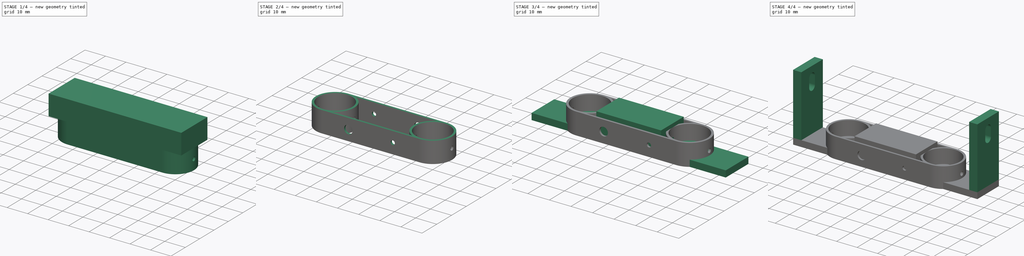
[diagram: build sequence overview — one tinted view per stage of 4, left to right]
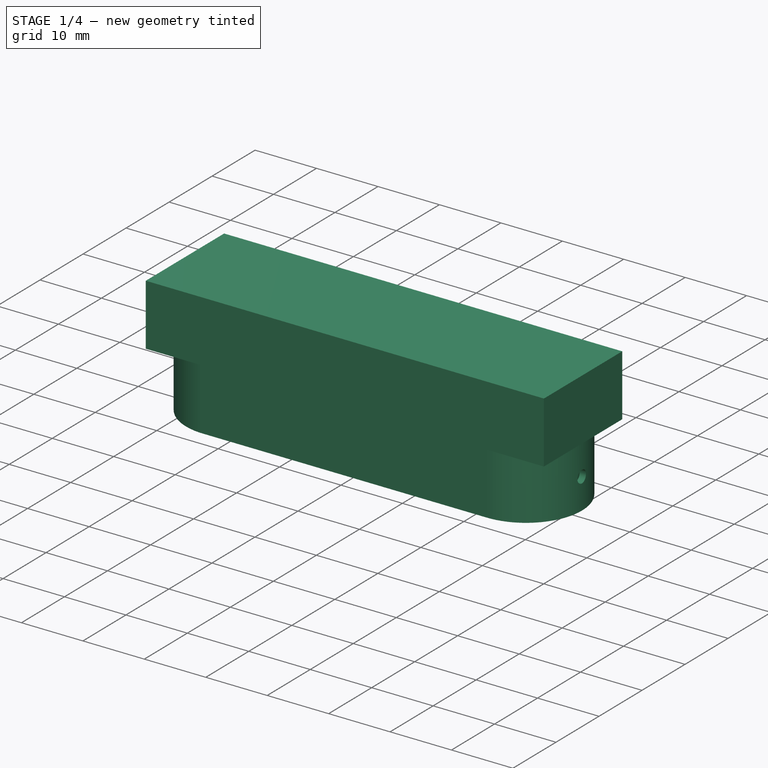
[diagram: stage 1 of 4 — iso view after this stage's code; geometry added in this stage tinted green]
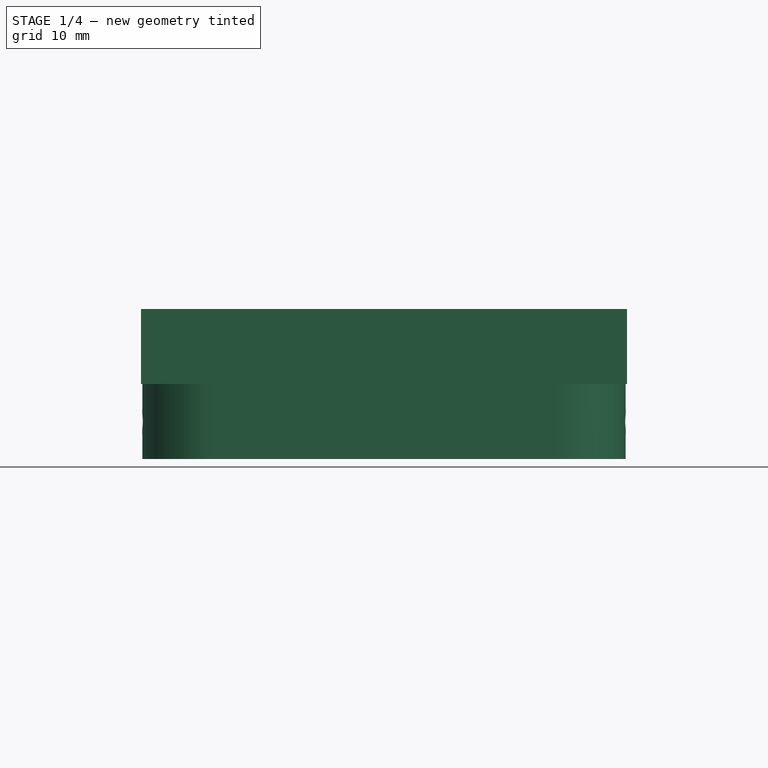
[diagram: stage 1 of 4 — front view after this stage's code; geometry added in this stage tinted green]
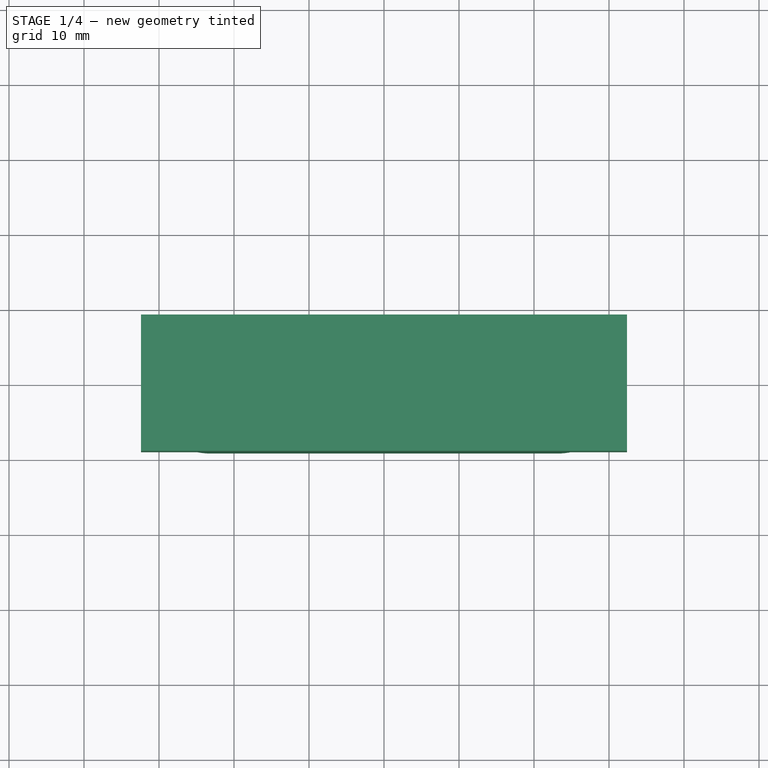
[diagram: stage 1 of 4 — top view after this stage's code; geometry added in this stage tinted green]
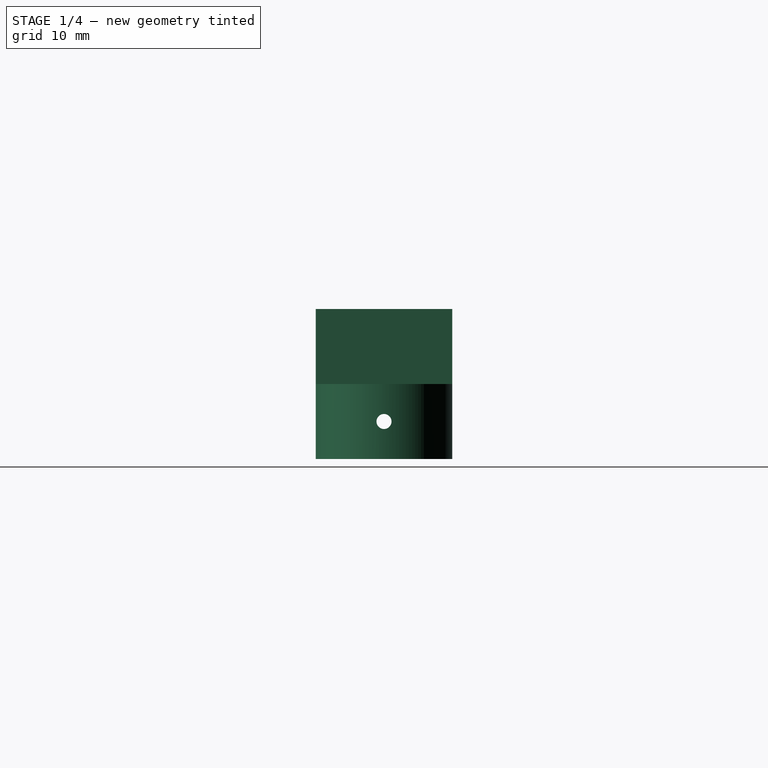
[diagram: stage 1 of 4 — right view after this stage's code; geometry added in this stage tinted green]
FCSTD DOCUMENT  (FreeCAD 0.21R33771 (Git))
Label: MotorBracket
License: All rights reserved
LicenseURL: http://en.wikipedia.org/wiki/All_rights_reserved
objects: Sketcher::SketchObject×11, PartDesign::Pocket×6, PartDesign::Pad×5, PartDesign::Body×2, App::Part×2
note: 35 computed .brp shape members not serialized (recipe doc carries the construction recipe); baked Part::Feature solids carry a one-line shape summary decoded from their .brp

FEATURE [PartDesign::Body] Body  label="MotorBracketBody"
  Group = -> [Sketch,Pad,Sketch001,Pad001,Sketch002,Pocket,Sketch003,Pad002,Sketch004,Pocket001]
  Origin = -> Origin001
  Tip = -> Pocket001
FEATURE [App::Part] Part  label="MotorBracketPart"
  Group = -> [Body]
  Origin = -> Origin
FEATURE [Sketcher::SketchObject] Sketch005
  FullyConstrained = true
  MapMode = 5
  Support = -> [XY_Plane003]
  sketch-geometry (11):
    g0: Circle CenterX=-23.125 CenterY=0 CenterZ=0 NormalX=0 NormalY=0 NormalZ=1 AngleXU=0 Radius=8.1
    g1: Circle CenterX=23.125 CenterY=0 CenterZ=0 NormalX=0 NormalY=0 NormalZ=1 AngleXU=0 Radius=8.1
    g2: ArcOfCircle CenterX=-23.125 CenterY=0 CenterZ=0 NormalX=0 NormalY=0 NormalZ=1 AngleXU=0 Radius=9.1 StartAngle=1.5708 EndAngle=4.71239
    g3: ArcOfCircle CenterX=23.125 CenterY=0 CenterZ=0 NormalX=0 NormalY=0 NormalZ=1 AngleXU=0 Radius=9.1 StartAngle=4.71239 EndAngle=7.85398
    g4: LineSegment StartX=-23.125 StartY=9.1 StartZ=0 EndX=23.125 EndY=9.1 EndZ=0
    g5: LineSegment StartX=23.125 StartY=-9.1 StartZ=0 EndX=-23.125 EndY=-9.1 EndZ=0
    g6: ArcOfCircle CenterX=-23.125 CenterY=0 CenterZ=0 NormalX=0 NormalY=0 NormalZ=1 AngleXU=0 Radius=9.1 StartAngle=5.16566 EndAngle=7.40278
    g7: ArcOfCircle CenterX=23.125 CenterY=0 CenterZ=0 NormalX=0 NormalY=0 NormalZ=1 AngleXU=0 Radius=9.1 StartAngle=2.02615 EndAngle=4.25911
    g8: LineSegment StartX=-19.157 StartY=8.18932 StartZ=0 EndX=19.123 EndY=8.18932 EndZ=0
    g9: LineSegment StartX=19.123 StartY=8.18932 StartZ=0 EndX=19.123 EndY=8.17276 EndZ=0
    g10: LineSegment StartX=19.14 StartY=-8.18106 StartZ=0 EndX=-19.14 EndY=-8.18106 EndZ=0
  constraints (33):
    c: PointOnObject(g0,g-1)
    c: PointOnObject(g1,g-1)
    c: Equal(g0,g1)
    c: Diameter(g0) = 16.2
    c: DistanceX(g0,g1) = 46.25
    c: DistanceX(g0,g-1) = 23.125
    c: Coincident(g2,g0)
    c: Coincident(g3,g1)
    c: Equal(g2,g3)
    c: Diameter(g2) = 18.2
    c: DistanceX(g4,g4) = 46.25
    c: Coincident(g2,g5)
    c: Coincident(g2,g4)
    c: Coincident(g3,g4)
    c: Coincident(g3,g5)
    c: DistanceX(g2,g-1) = 23.125
    c: DistanceY(g1,g3) = 9.1
    c: DistanceX(g5,g5) = 46.25
    c: Coincident(g6,g0)
    c: Coincident(g7,g1)
    c: Equal(g6,g7)
    c: Diameter(g6) = 18.2
    c: Coincident(g8,g9)
    c: Horizontal(g8)
    c: Horizontal(g10)
    c: Vertical(g9)
    c: Coincident(g7,g9)
    c: Coincident(g7,g10)
    c: Coincident(g6,g8)
    c: DistanceX(g8,g8) = 38.28
    c: DistanceX(g10,g10) = 38.28
    c: Coincident(g6,g10)
    c: DistanceX(g6,g-1) = 19.157
FEATURE [PartDesign::Pad] Pad003  label="MotorRingsPad"
  Direction = (0,0,1)
  Length = 10
  Length2 = 10
  Profile = -> Sketch005
  ReferenceAxis = -> Sketch005 [N_Axis]
  Type = 0
FEATURE [Sketcher::SketchObject] Sketch006
  FullyConstrained = true
  MapMode = 5
  Placement = pos=(0,0,10) rot=(0,0,1;0rad)
  Support = -> [Pad003]
  sketch-geometry (4):
    g0: LineSegment StartX=-32.4 StartY=9.1 StartZ=0 EndX=32.4 EndY=9.1 EndZ=0
    g1: LineSegment StartX=32.4 StartY=9.1 StartZ=0 EndX=32.4 EndY=-9.1 EndZ=0
    g2: LineSegment StartX=32.4 StartY=-9.1 StartZ=0 EndX=-32.4 EndY=-9.1 EndZ=0
    g3: LineSegment StartX=-32.4 StartY=-9.1 StartZ=0 EndX=-32.4 EndY=9.1 EndZ=0
  constraints (11):
    c: Coincident(g0,g1)
    c: Coincident(g1,g2)
    c: Coincident(g2,g3)
    c: Coincident(g3,g0)
    c: Horizontal(g0)
    c: Horizontal(g2)
    c: Vertical(g1)
    c: Vertical(g3)
    c: DistanceY(g1,g1) = 18.2
    c: Symmetric(g0,g1,g-1)
    c: DistanceX(g0,g0) = 64.8
FEATURE [PartDesign::Pad] Pad004  label="FakePad"
  BaseFeature = -> Pad003
  Direction = (0,0,1)
  Length = 10
  Length2 = 10
  Profile = -> Sketch006
  ReferenceAxis = -> Sketch006 [N_Axis]
  Type = 0
FEATURE [Sketcher::SketchObject] Sketch007
  FullyConstrained = true
  MapMode = 5
  Placement = pos=(-32.4,0,0) rot=(0.57735,-0.57735,-0.57735;2.0944rad)
  Support = -> [Pad004]
  sketch-geometry (1):
    g0: Circle CenterX=0 CenterY=5 CenterZ=0 NormalX=0 NormalY=0 NormalZ=1 AngleXU=0 Radius=1
  constraints (3):
    c: PointOnObject(g0,g-2)
    c: DistanceY(g-1,g0) = 5
    c: Diameter(g0) = 2
FEATURE [PartDesign::Pocket] Pocket002  label="EndHolePocket"
  BaseFeature = -> Pad004
  Direction = (1,0,0)
  Length = 5
  Length2 = 5
  Profile = -> Sketch007
  ReferenceAxis = -> Sketch007 [N_Axis]
  Type = 1
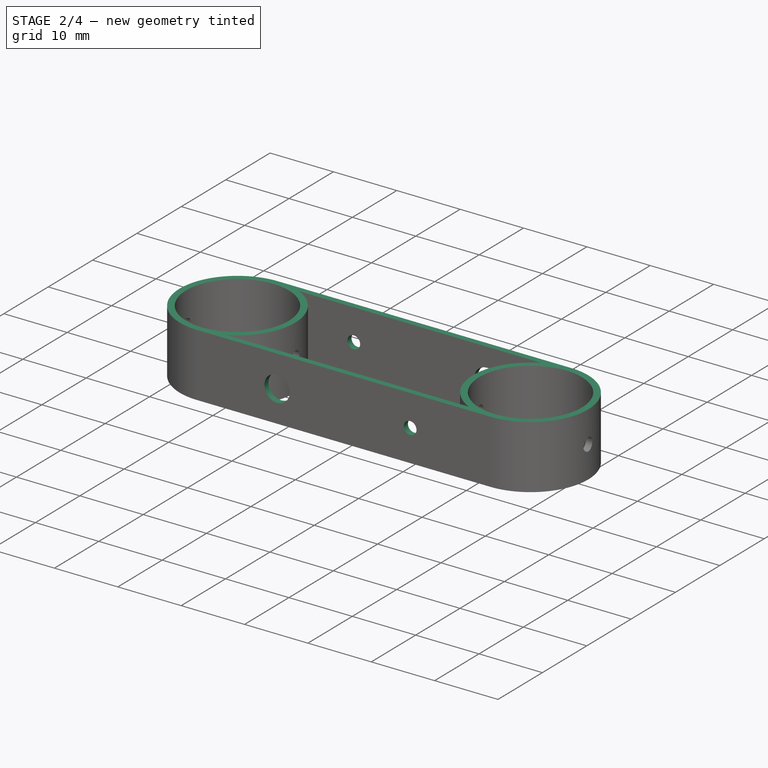
[diagram: stage 2 of 4 — iso view after this stage's code; geometry added in this stage tinted green]
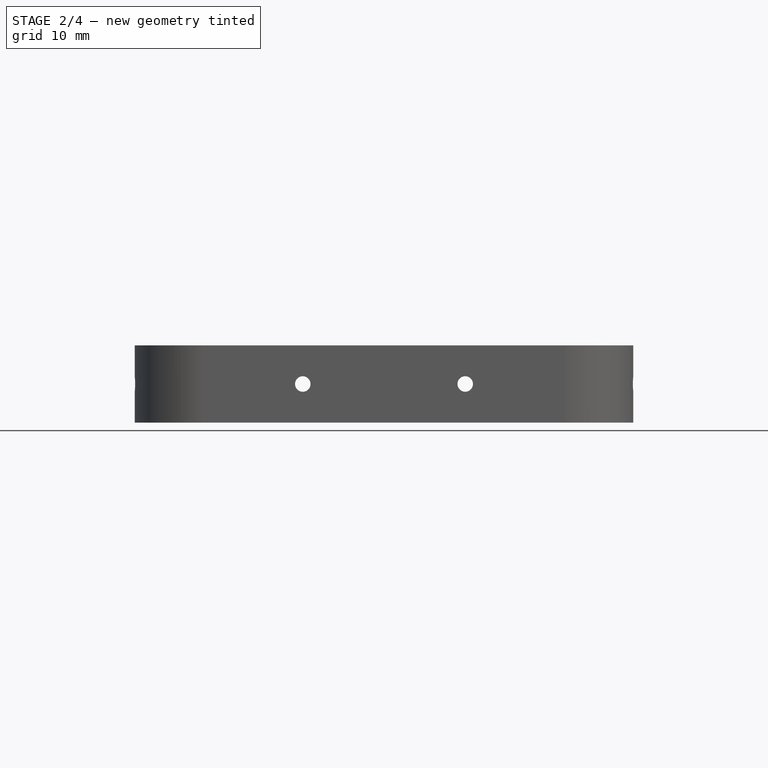
[diagram: stage 2 of 4 — front view after this stage's code; geometry added in this stage tinted green]
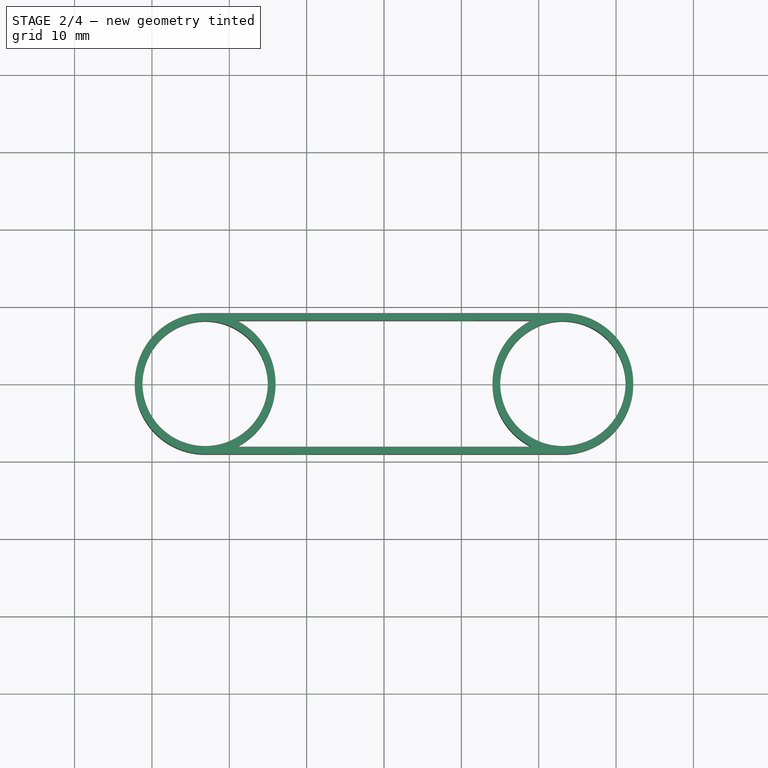
[diagram: stage 2 of 4 — top view after this stage's code; geometry added in this stage tinted green]
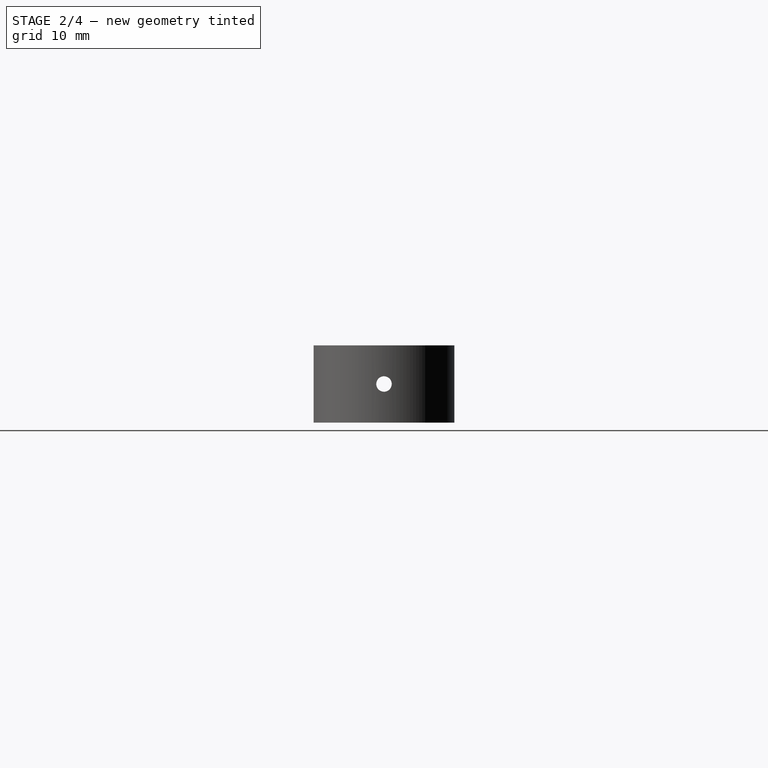
[diagram: stage 2 of 4 — right view after this stage's code; geometry added in this stage tinted green]
FEATURE [Sketcher::SketchObject] Sketch008
  FullyConstrained = true
  MapMode = 5
  Placement = pos=(0,0,20) rot=(0,0,1;0rad)
  Support = -> [Pocket002]
  sketch-geometry (4):
    g0: LineSegment StartX=-32.4 StartY=9.1 StartZ=0 EndX=32.4 EndY=9.1 EndZ=0
    g1: LineSegment StartX=32.4 StartY=9.1 StartZ=0 EndX=32.4 EndY=-9.1 EndZ=0
    g2: LineSegment StartX=32.4 StartY=-9.1 StartZ=0 EndX=-32.4 EndY=-9.1 EndZ=0
    g3: LineSegment StartX=-32.4 StartY=-9.1 StartZ=0 EndX=-32.4 EndY=9.1 EndZ=0
  constraints (11):
    c: Coincident(g0,g1)
    c: Coincident(g1,g2)
    c: Coincident(g2,g3)
    c: Coincident(g3,g0)
    c: Horizontal(g0)
    c: Horizontal(g2)
    c: Vertical(g1)
    c: Vertical(g3)
    c: Symmetric(g0,g1,g-1)
    c: DistanceY(g1,g1) = 18.2
    c: DistanceX(g0,g0) = 64.8
FEATURE [PartDesign::Pocket] Pocket003  label="FakePadPocket"
  BaseFeature = -> Pocket002
  Direction = (0,0,-1)
  Length = 10
  Length2 = 5
  Profile = -> Sketch008
  ReferenceAxis = -> Sketch008 [N_Axis]
  Type = 0
FEATURE [Sketcher::SketchObject] Sketch009
  FullyConstrained = true
  MapMode = 5
  Placement = pos=(0,-9.1,0) rot=(1,0,0;1.5708rad)
  Support = -> [Pocket003]
  sketch-geometry (2):
    g0: Circle CenterX=-10.5 CenterY=5 CenterZ=0 NormalX=0 NormalY=0 NormalZ=1 AngleXU=0 Radius=2
    g1: Circle CenterX=10.5 CenterY=5 CenterZ=0 NormalX=0 NormalY=0 NormalZ=1 AngleXU=0 Radius=1
  constraints (6):
    c: Diameter(g0) = 4
    c: DistanceY(g-1,g0) = 5
    c: DistanceX(g0,g-1) = 10.5
    c: Diameter(g1) = 2
    c: DistanceX(g-1,g1) = 10.5
    c: DistanceY(g-1,g1) = 5
FEATURE [PartDesign::Pocket] Pocket004  label="SidePockets1"
  BaseFeature = -> Pocket003
  Direction = (0,1,-2e-16)
  Length = 2
  Length2 = 5
  Profile = -> Sketch009
  ReferenceAxis = -> Sketch009 [N_Axis]
  Type = 0
FEATURE [Sketcher::SketchObject] Sketch010
  FullyConstrained = true
  MapMode = 5
  Placement = pos=(0,9.1,0) rot=(0,0.707107,0.707107;3.14159rad)
  Support = -> [Pocket004]
  sketch-geometry (2):
    g0: Circle CenterX=-10.5 CenterY=5 CenterZ=0 NormalX=0 NormalY=0 NormalZ=1 AngleXU=0 Radius=2
    g1: Circle CenterX=10.5 CenterY=5 CenterZ=0 NormalX=0 NormalY=0 NormalZ=1 AngleXU=0 Radius=1
  constraints (6):
    c: Diameter(g0) = 4
    c: Diameter(g1) = 2
    c: DistanceX(g0,g-1) = 10.5
    c: DistanceX(g-1,g1) = 10.5
    c: DistanceY(g-1,g0) = 5
    c: DistanceY(g-1,g1) = 5
FEATURE [PartDesign::Pocket] Pocket005  label="SidePackets2"
  BaseFeature = -> Pocket004
  Direction = (0,-1,2e-16)
  Length = 2
  Length2 = 5
  Profile = -> Sketch010
  ReferenceAxis = -> Sketch010 [N_Axis]
  Type = 0
FEATURE [PartDesign::Body] Body001  label="MotorRingsBody"
  Group = -> [Sketch005,Pad003,Sketch006,Pad004,Sketch007,Pocket002,Sketch008,Pocket003,Sketch009,Pocket004,Sketch010,Pocket005]
  Origin = -> Origin003
  Tip = -> Pocket005
FEATURE [App::Part] Part001  label="MotorRingsPart"
  Group = -> [Body001]
  Origin = -> Origin002
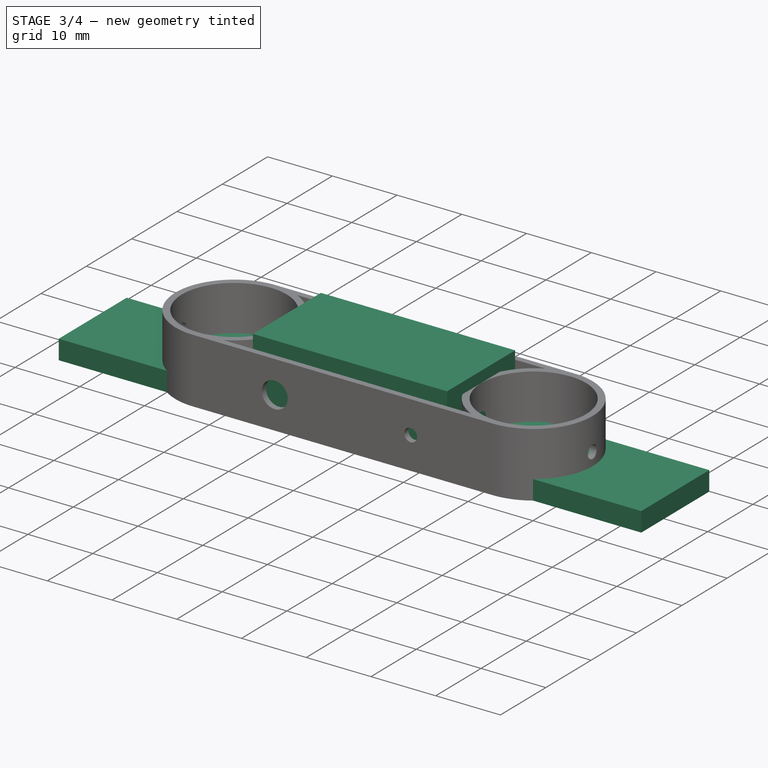
[diagram: stage 3 of 4 — iso view after this stage's code; geometry added in this stage tinted green]
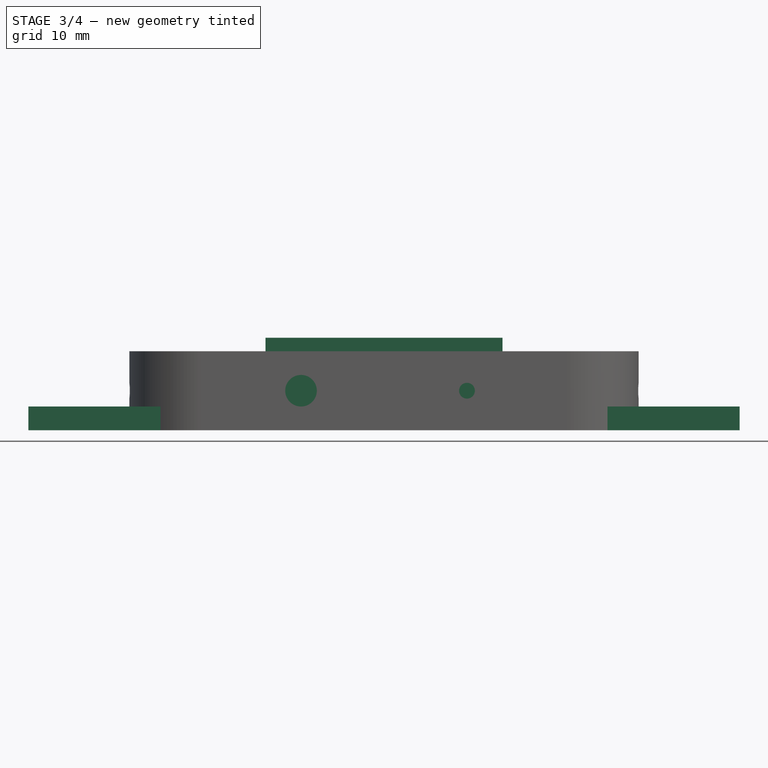
[diagram: stage 3 of 4 — front view after this stage's code; geometry added in this stage tinted green]
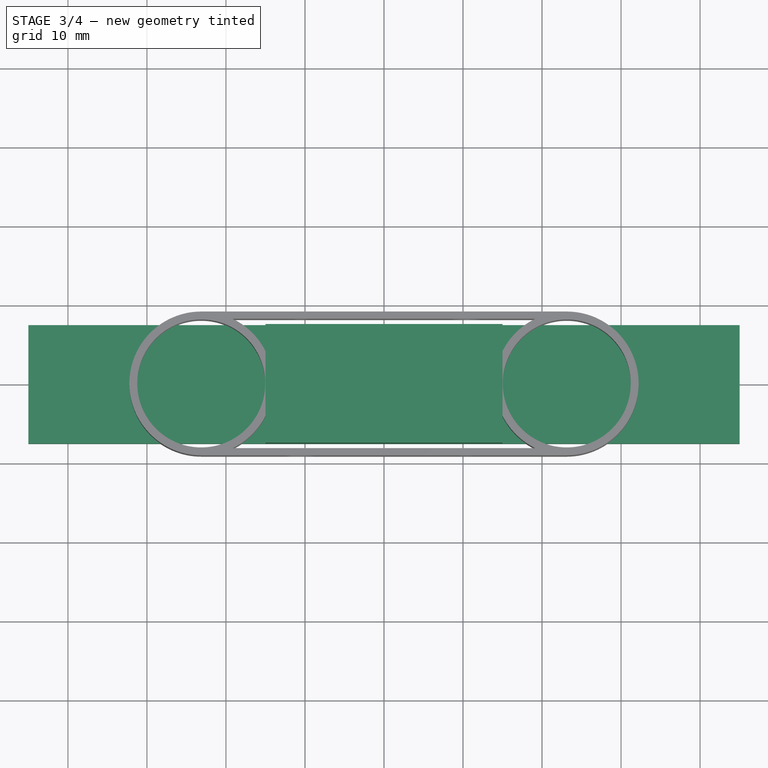
[diagram: stage 3 of 4 — top view after this stage's code; geometry added in this stage tinted green]
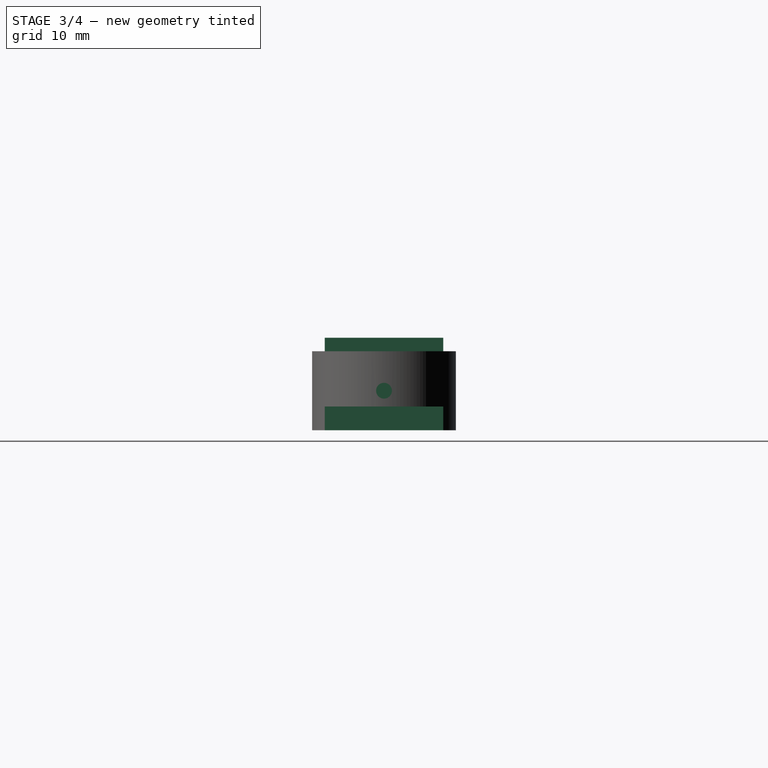
[diagram: stage 3 of 4 — right view after this stage's code; geometry added in this stage tinted green]
FEATURE [Sketcher::SketchObject] Sketch
  FullyConstrained = true
  MapMode = 5
  Support = -> [XY_Plane001]
  sketch-geometry (4):
    g0: LineSegment StartX=-45 StartY=7.5 StartZ=0 EndX=45 EndY=7.5 EndZ=0
    g1: LineSegment StartX=45 StartY=7.5 StartZ=0 EndX=45 EndY=-7.5 EndZ=0
    g2: LineSegment StartX=45 StartY=-7.5 StartZ=0 EndX=-45 EndY=-7.5 EndZ=0
    g3: LineSegment StartX=-45 StartY=-7.5 StartZ=0 EndX=-45 EndY=7.5 EndZ=0
  constraints (11):
    c: Coincident(g0,g1)
    c: Coincident(g1,g2)
    c: Coincident(g2,g3)
    c: Coincident(g3,g0)
    c: Horizontal(g0)
    c: Horizontal(g2)
    c: Vertical(g1)
    c: Vertical(g3)
    c: DistanceX(g0,g0) = 90
    c: DistanceY(g3,g3) = 15
    c: Symmetric(g2,g0,g-1)
FEATURE [PartDesign::Pad] Pad  label="MotorBracketPad"
  Direction = (0,0,1)
  Length = 3
  Length2 = 10
  Profile = -> Sketch
  ReferenceAxis = -> Sketch [N_Axis]
  Type = 0
FEATURE [Sketcher::SketchObject] Sketch001
  FullyConstrained = true
  MapMode = 5
  Placement = pos=(0,0,3) rot=(0,0,1;0rad)
  Support = -> [Pad]
  sketch-geometry (4):
    g0: LineSegment StartX=-15 StartY=7.5 StartZ=0 EndX=15 EndY=7.5 EndZ=0
    g1: LineSegment StartX=15 StartY=7.5 StartZ=0 EndX=15 EndY=-7.5 EndZ=0
    g2: LineSegment StartX=15 StartY=-7.5 StartZ=0 EndX=-15 EndY=-7.5 EndZ=0
    g3: LineSegment StartX=-15 StartY=-7.5 StartZ=0 EndX=-15 EndY=7.5 EndZ=0
  constraints (11):
    c: Coincident(g0,g1)
    c: Coincident(g1,g2)
    c: Coincident(g2,g3)
    c: Coincident(g3,g0)
    c: Horizontal(g0)
    c: Horizontal(g2)
    c: Vertical(g1)
    c: Vertical(g3)
    c: DistanceX(g0,g0) = 30
    c: DistanceY(g1,g1) = 15
    c: Symmetric(g0,g2,g-1)
FEATURE [PartDesign::Pad] Pad001  label="CenterBracketPad"
  BaseFeature = -> Pad
  Direction = (0,0,1)
  Length = 8.7
  Length2 = 10
  Profile = -> Sketch001
  ReferenceAxis = -> Sketch001 [N_Axis]
  Type = 0
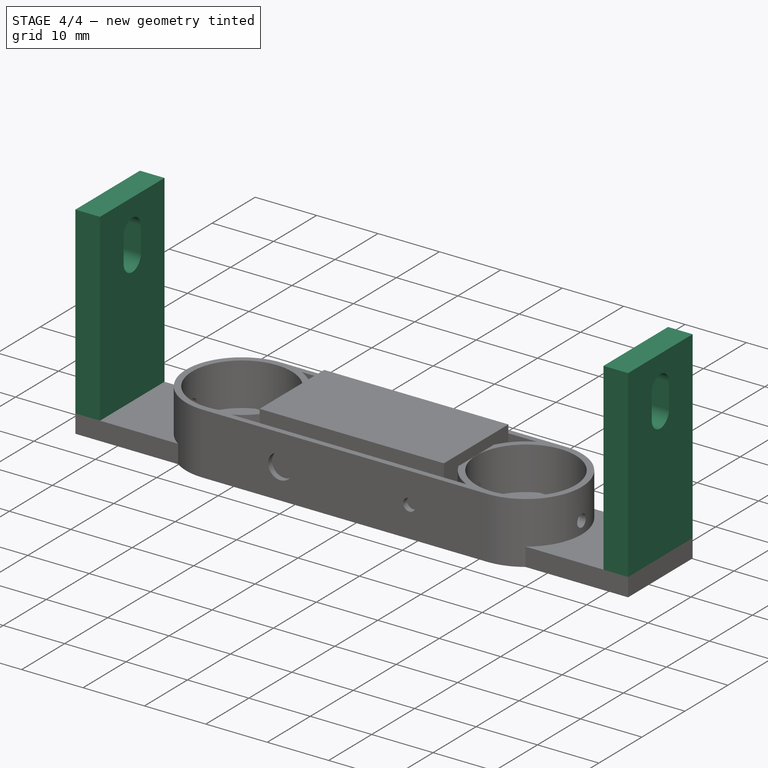
[diagram: stage 4 of 4 — iso view after this stage's code; geometry added in this stage tinted green]
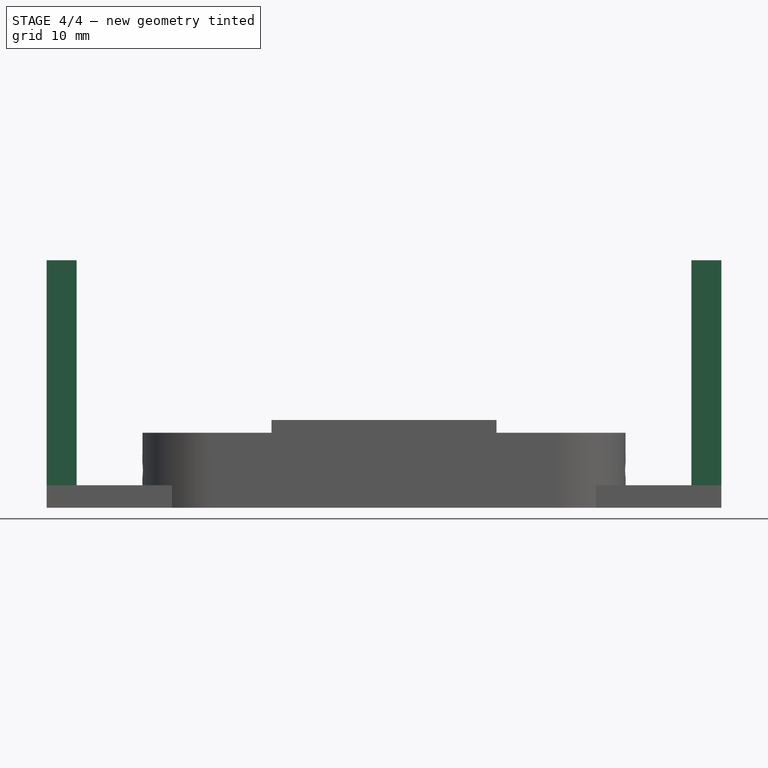
[diagram: stage 4 of 4 — front view after this stage's code; geometry added in this stage tinted green]
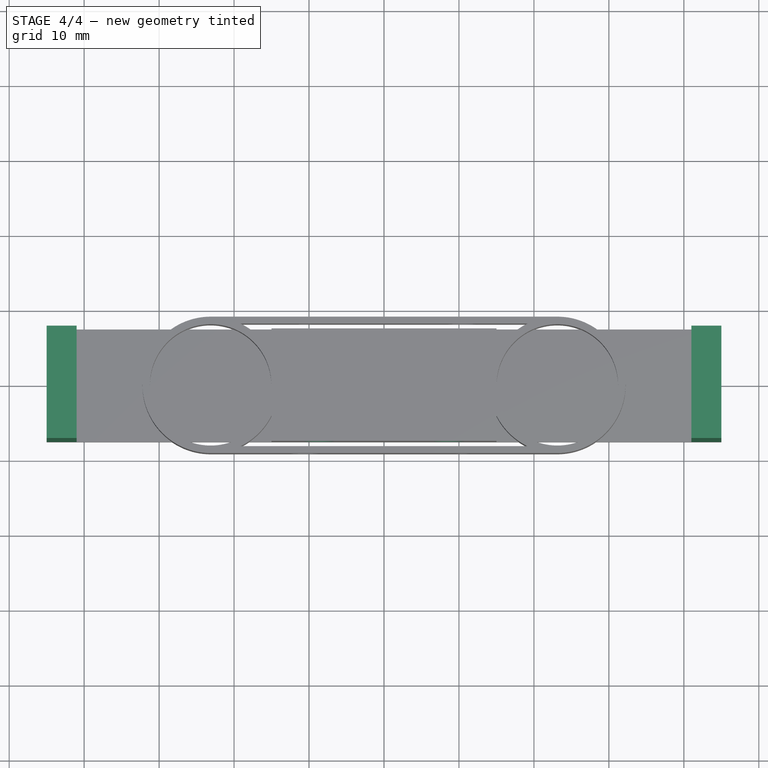
[diagram: stage 4 of 4 — top view after this stage's code; geometry added in this stage tinted green]
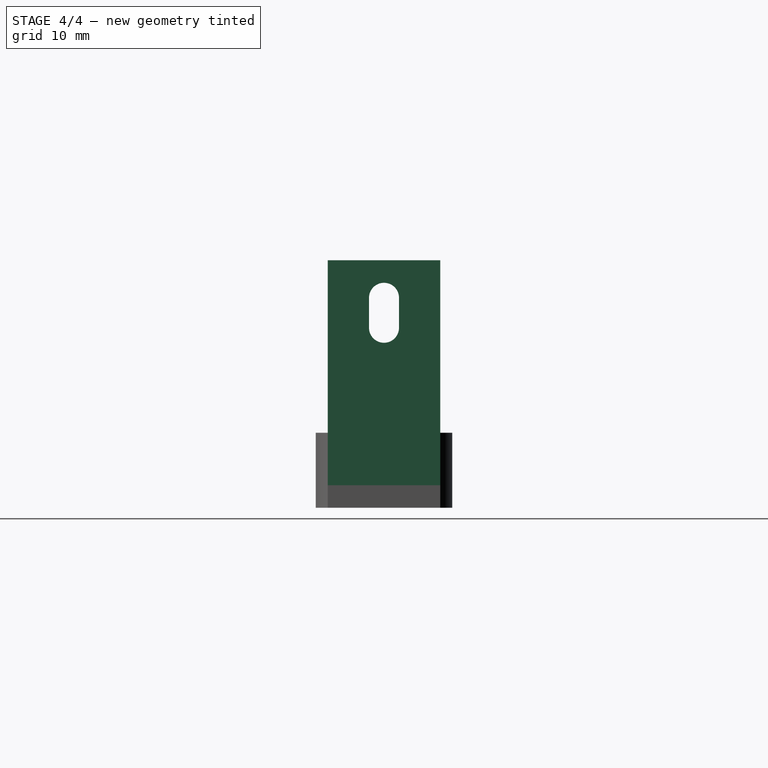
[diagram: stage 4 of 4 — right view after this stage's code; geometry added in this stage tinted green]
FEATURE [Sketcher::SketchObject] Sketch002
  FullyConstrained = true
  MapMode = 5
  Placement = pos=(0,-7.5,0) rot=(1,0,0;1.5708rad)
  Support = -> [Pad001]
  sketch-geometry (2):
    g0: Circle CenterX=8.65 CenterY=7.36 CenterZ=0 NormalX=0 NormalY=0 NormalZ=1 AngleXU=0 Radius=2
    g1: Circle CenterX=-8.65 CenterY=7.36 CenterZ=0 NormalX=0 NormalY=0 NormalZ=1 AngleXU=0 Radius=2
  constraints (6):
    c: DistanceX(g1,g-1) = 8.65
    c: DistanceX(g-1,g0) = 8.65
    c: DistanceY(g-1,g0) = 7.36
    c: DistanceY(g-1,g1) = 7.36
    c: Equal(g0,g1)
    c: Diameter(g0) = 4
FEATURE [PartDesign::Pocket] Pocket  label="M3InsertPocket"
  BaseFeature = -> Pad001
  Direction = (0,1,-2e-16)
  Length = 5
  Length2 = 5
  Profile = -> Sketch002
  ReferenceAxis = -> Sketch002 [N_Axis]
  Type = 1
FEATURE [Sketcher::SketchObject] Sketch003
  FullyConstrained = true
  MapMode = 5
  Placement = pos=(0,0,3) rot=(0,0,1;0rad)
  Support = -> [Pocket]
  sketch-geometry (8):
    g0: LineSegment StartX=-45 StartY=7.5 StartZ=0 EndX=-41 EndY=7.5 EndZ=0
    g1: LineSegment StartX=-41 StartY=7.5 StartZ=0 EndX=-41 EndY=-7.5 EndZ=0
    g2: LineSegment StartX=-41 StartY=-7.5 StartZ=0 EndX=-45 EndY=-7.5 EndZ=0
    g3: LineSegment StartX=-45 StartY=-7.5 StartZ=0 EndX=-45 EndY=7.5 EndZ=0
    g4: LineSegment StartX=45 StartY=7.5 StartZ=0 EndX=41 EndY=7.5 EndZ=0
    g5: LineSegment StartX=41 StartY=7.5 StartZ=0 EndX=41 EndY=-7.5 EndZ=0
    g6: LineSegment StartX=41 StartY=-7.5 StartZ=0 EndX=45 EndY=-7.5 EndZ=0
    g7: LineSegment StartX=45 StartY=-7.5 StartZ=0 EndX=45 EndY=7.5 EndZ=0
  constraints (24):
    c: Coincident(g0,g1)
    c: Coincident(g1,g2)
    c: Coincident(g2,g3)
    c: Coincident(g3,g0)
    c: Horizontal(g0)
    c: Horizontal(g2)
    c: Vertical(g1)
    c: Vertical(g3)
    c: Coincident(g4,g5)
    c: Coincident(g5,g6)
    c: Coincident(g6,g7)
    c: Coincident(g7,g4)
    c: Horizontal(g4)
    c: Horizontal(g6)
    c: Vertical(g5)
    c: Vertical(g7)
    c: DistanceX(g4,g4) = 4
    c: DistanceX(g0,g0) = 4
    c: DistanceY(g1,g1) = 15
    c: DistanceY(g5,g5) = 15
    c: DistanceY(g-1,g0) = 7.5
    c: DistanceY(g-1,g4) = 7.5
    c: DistanceX(g0,g-1) = 45
    c: DistanceX(g-1,g4) = 45
FEATURE [PartDesign::Pad] Pad002  label="MotorBracketMountPad"
  BaseFeature = -> Pocket
  Direction = (0,0,1)
  Length = 30
  Length2 = 10
  Profile = -> Sketch003
  ReferenceAxis = -> Sketch003 [N_Axis]
  Type = 0
FEATURE [Sketcher::SketchObject] Sketch004
  FullyConstrained = true
  MapMode = 5
  Placement = pos=(-45,0,0) rot=(0.57735,-0.57735,-0.57735;2.0944rad)
  Support = -> [Pad002]
  sketch-geometry (4):
    g0: ArcOfCircle CenterX=0 CenterY=28 CenterZ=0 NormalX=0 NormalY=0 NormalZ=1 AngleXU=0 Radius=2 StartAngle=6.28318 EndAngle=9.42478
    g1: ArcOfCircle CenterX=0 CenterY=24 CenterZ=0 NormalX=0 NormalY=0 NormalZ=1 AngleXU=0 Radius=2 StartAngle=3.1416 EndAngle=6.28318
    g2: LineSegment StartX=-2 StartY=28 StartZ=0 EndX=-2 EndY=24 EndZ=0
    g3: LineSegment StartX=2 StartY=28 StartZ=0 EndX=2 EndY=24 EndZ=0
  constraints (14):
    c: PointOnObject(g0,g-2)
    c: PointOnObject(g1,g-2)
    c: Equal(g0,g1)
    c: Diameter(g0) = 4
    c: DistanceX(g0,g0) = 2
    c: DistanceX(g0,g0) = 2
    c: DistanceX(g1,g1) = 2
    c: DistanceX(g1,g1) = 2
    c: DistanceY(g1,g0) = 4
    c: Coincident(g2,g0)
    c: Coincident(g2,g1)
    c: Coincident(g3,g0)
    c: Coincident(g3,g1)
    c: DistanceY(g-1,g1) = 24
FEATURE [PartDesign::Pocket] Pocket001  label="MotorBracketMountPocket"
  BaseFeature = -> Pad002
  Direction = (1,0,0)
  Length = 5
  Length2 = 5
  Profile = -> Sketch004
  ReferenceAxis = -> Sketch004 [N_Axis]
  Type = 1
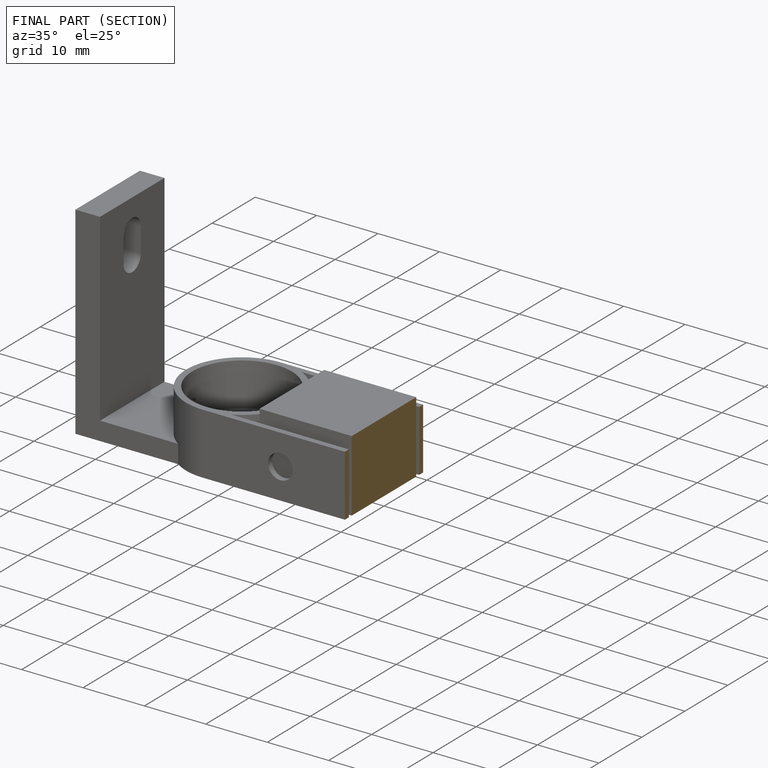
[diagram: finished part — half-section view (interior)]
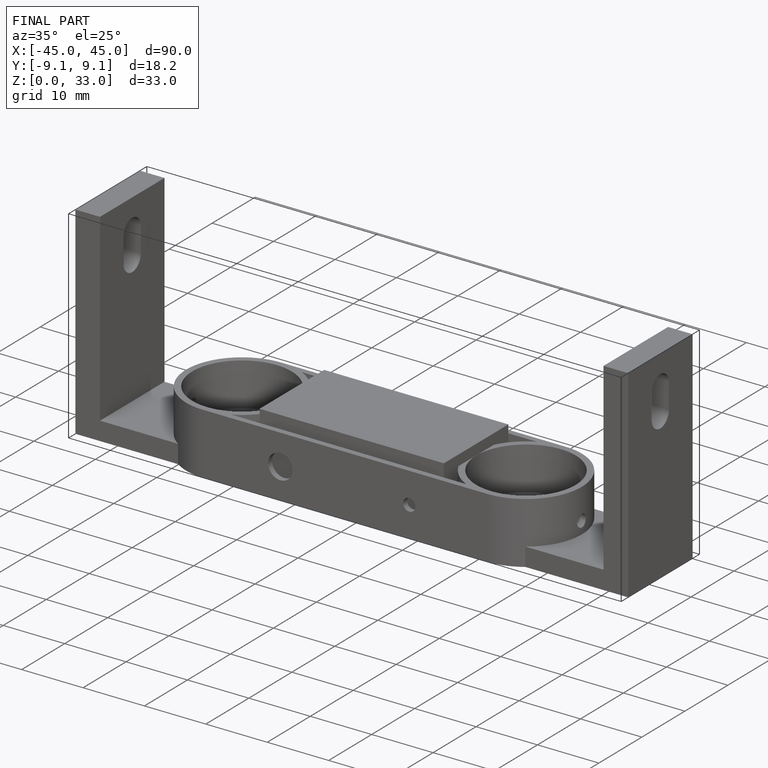
[diagram: finished part — iso view with bounding-box wireframe]
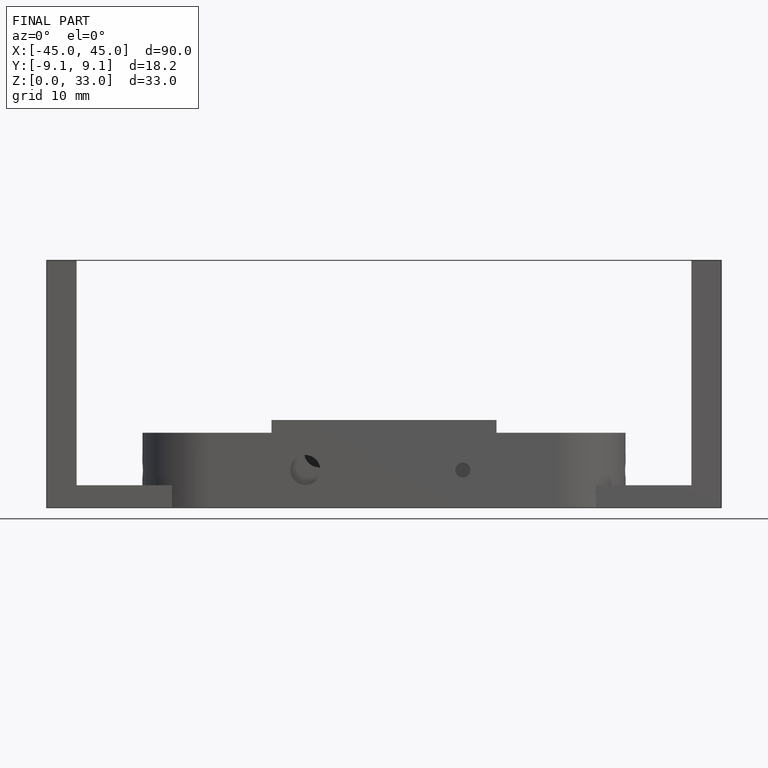
[diagram: finished part — front view with bounding-box wireframe]
